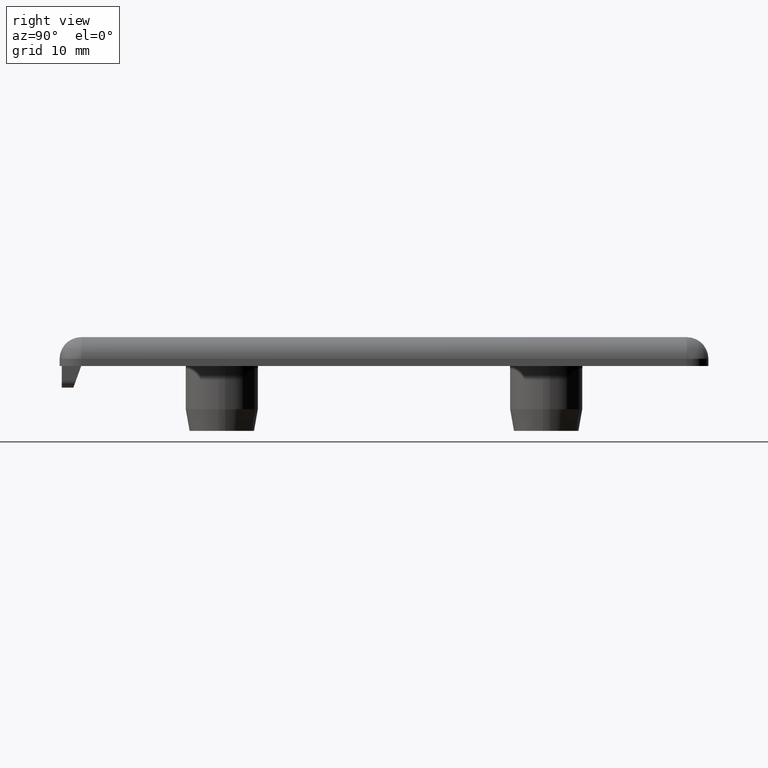
[diagram: clean part render]
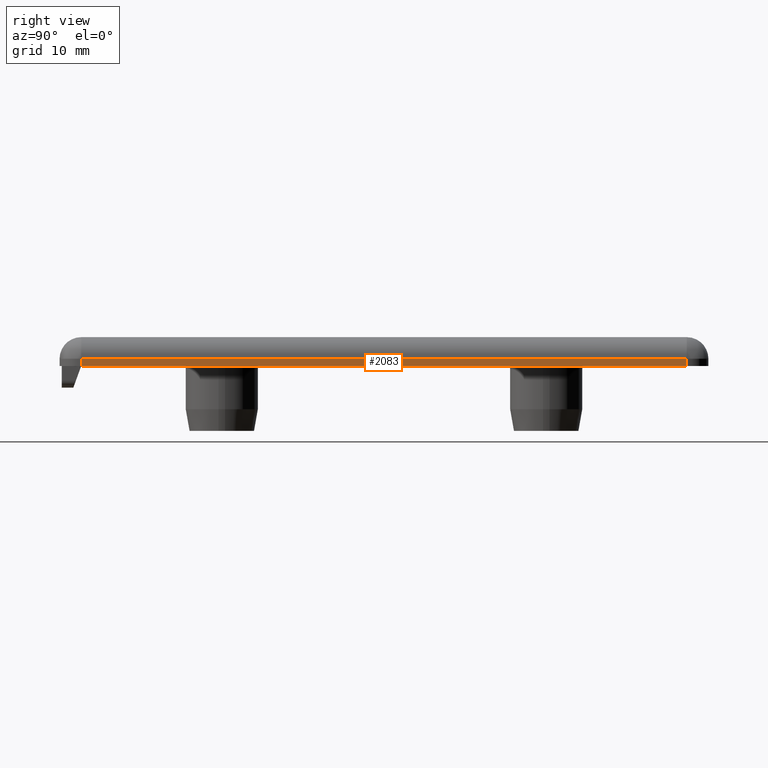
[diagram: same view with one face highlighted and labeled with its STEP entity id]
A machine part, right view. The second image highlights one B-rep face of the part: STEP entity #2083.
In plain terms, the highlighted planar face has unit normal (-1, 0, 0).
Its self-contained STEP definition (entity closure, byte-faithful):
#9 = FACE_OUTER_BOUND ( 'NONE', #1318, .T. ) ;
#22 = CARTESIAN_POINT ( 'NONE',  ( 22.50000000000000000, -42.00000000000000000, 1.000000000101197300 ) ) ;
#53 = DIRECTION ( 'NONE',  ( -0.0000000000000000000, -0.0000000000000000000, -1.000000000000000000 ) ) ;
#142 = VERTEX_POINT ( 'NONE', #964 ) ;
#143 = ORIENTED_EDGE ( 'NONE', *, *, #1286, .F. ) ;
#170 = VECTOR ( 'NONE', #53, 1000.000000000000000 ) ;
#193 = EDGE_CURVE ( 'NONE', #1217, #142, #1225, .T. ) ;
#203 = CARTESIAN_POINT ( 'NONE',  ( 22.50000000000000000, -42.00000000000000000, 5.510910596163090300E-015 ) ) ;
#442 = CARTESIAN_POINT ( 'NONE',  ( 22.50000000000000000, -42.00000000000000000, 2.696301922142130200E-030 ) ) ;
#466 = ORIENTED_EDGE ( 'NONE', *, *, #878, .F. ) ;
#503 = VECTOR ( 'NONE', #1075, 1000.000000000000000 ) ;
#689 = DIRECTION ( 'NONE',  ( 0.0000000000000000000, 0.0000000000000000000, 1.000000000000000000 ) ) ;
#774 = DIRECTION ( 'NONE',  ( -2.220446049250310100E-016, -1.000000000000000000, 0.0000000000000000000 ) ) ;
#813 = LINE ( 'NONE', #203, #880 ) ;
#878 = EDGE_CURVE ( 'NONE', #142, #2084, #1031, .T. ) ;
#880 = VECTOR ( 'NONE', #689, 1000.000000000000000 ) ;
#920 = PLANE ( 'NONE',  #1480 ) ;
#935 = CARTESIAN_POINT ( 'NONE',  ( 22.50000000000000000, -45.00000000000000000, 5.510910596163090300E-015 ) ) ;
#964 = CARTESIAN_POINT ( 'NONE',  ( 22.50000000000002100, 41.99999999999999300, -5.143516556418880200E-015 ) ) ;
#975 = ORIENTED_EDGE ( 'NONE', *, *, #193, .F. ) ;
#1031 = LINE ( 'NONE', #1698, #1111 ) ;
#1075 = DIRECTION ( 'NONE',  ( 2.220446049250310100E-016, 1.000000000000000000, -1.224646799147350000E-016 ) ) ;
#1108 = DIRECTION ( 'NONE',  ( -1.000000000000000000, 2.220446049250310100E-016, 0.0000000000000000000 ) ) ;
#1111 = VECTOR ( 'NONE', #1350, 1000.000000000000000 ) ;
#1217 = VERTEX_POINT ( 'NONE', #1266 ) ;
#1221 = CARTESIAN_POINT ( 'NONE',  ( 22.50000000000000000, -45.00000000000000000, 1.000000000000001100 ) ) ;
#1225 = LINE ( 'NONE', #1825, #170 ) ;
#1266 = CARTESIAN_POINT ( 'NONE',  ( 22.50000000000000700, 41.99999999999999300, 0.9999999999999954500 ) ) ;
#1286 = EDGE_CURVE ( 'NONE', #2084, #1602, #813, .T. ) ;
#1318 = EDGE_LOOP ( 'NONE', ( #2094, #143, #466, #975 ) ) ;
#1350 = DIRECTION ( 'NONE',  ( -2.220446049250310100E-016, -1.000000000000000000, 0.0000000000000000000 ) ) ;
#1480 = AXIS2_PLACEMENT_3D ( 'NONE', #935, #1108, #774 ) ;
#1522 = EDGE_CURVE ( 'NONE', #1602, #1217, #1748, .T. ) ;
#1602 = VERTEX_POINT ( 'NONE', #22 ) ;
#1698 = CARTESIAN_POINT ( 'NONE',  ( 22.50000000000000000, -45.00000000000000000, -5.143516556418880200E-015 ) ) ;
#1748 = LINE ( 'NONE', #1221, #503 ) ;
#1825 = CARTESIAN_POINT ( 'NONE',  ( 22.50000000000002100, 41.99999999999999300, 5.510910596163090300E-015 ) ) ;
#2083 = ADVANCED_FACE ( 'NONE', ( #9 ), #920, .F. ) ;
#2084 = VERTEX_POINT ( 'NONE', #442 ) ;
#2094 = ORIENTED_EDGE ( 'NONE', *, *, #1522, .F. ) ;